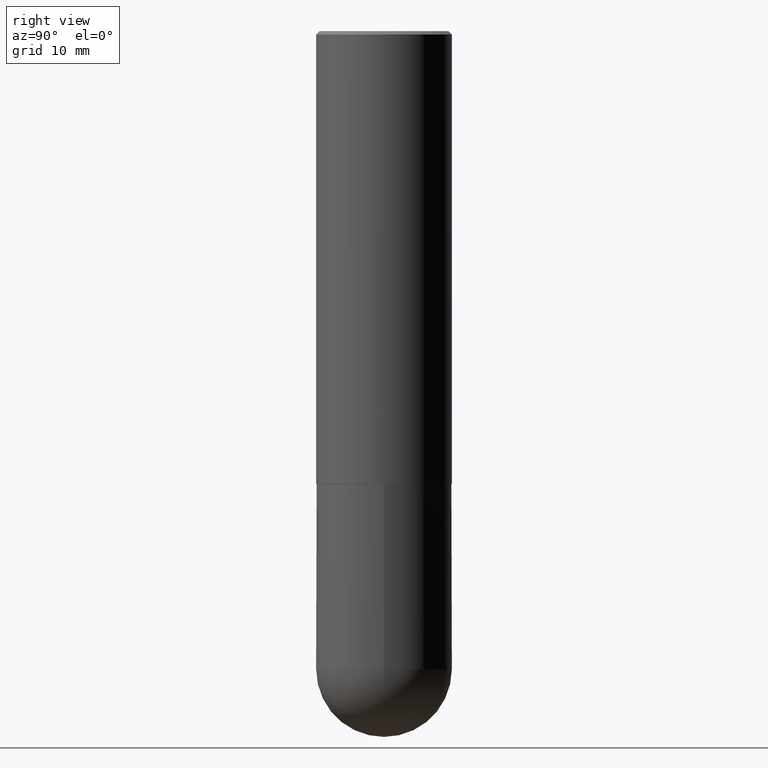
[diagram: clean part render]
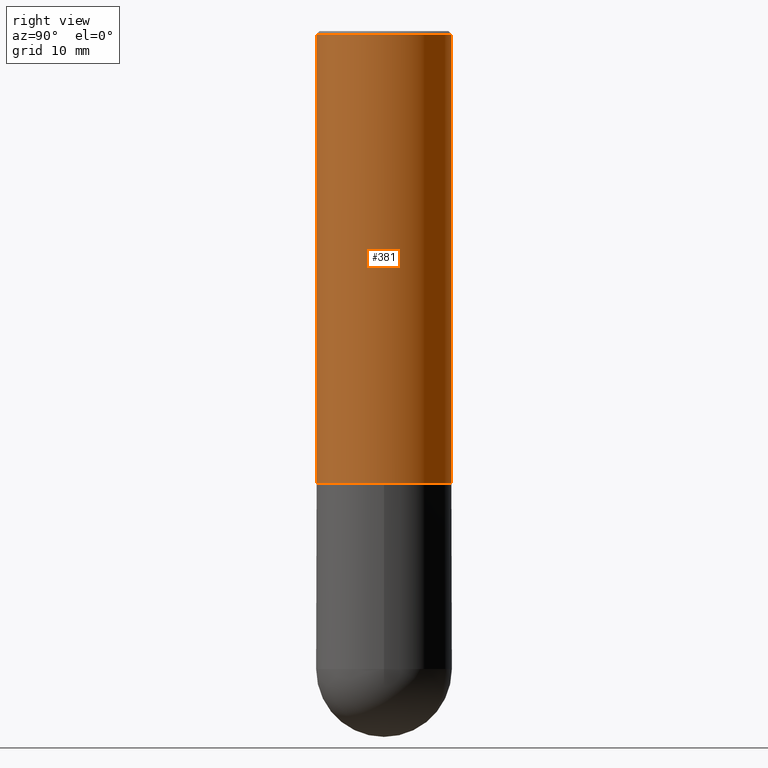
[diagram: same view with one face highlighted and labeled with its STEP entity id]
A machine part, right view. The second image highlights one B-rep face of the part: STEP entity #381.
In plain terms, the highlighted cylindrical surface (partial cylindrical patch) has radius 10 mm, axis along (-0, 0, 1).
Its self-contained STEP definition (entity closure, byte-faithful):
#10 = CARTESIAN_POINT ( 'NONE',  ( 6.420003766167635957E-29, -9.164210326870732173E-15, -2.625000000000000444 ) ) ;
#16 = VERTEX_POINT ( 'NONE', #211 ) ;
#23 = CARTESIAN_POINT ( 'NONE',  ( 2.749192406205083217E-15, 0.3936999999999999389, -0.02000000000000146105 ) ) ;
#50 = ORIENTED_EDGE ( 'NONE', *, *, #168, .F. ) ;
#53 = AXIS2_PLACEMENT_3D ( 'NONE', #193, #73, #164 ) ;
#71 = CYLINDRICAL_SURFACE ( 'NONE', #53, 0.3937000000000001609 ) ;
#73 = DIRECTION ( 'NONE',  ( -2.445715720444812897E-29, 3.491127743569801887E-15, 1.000000000000000000 ) ) ;
#83 = EDGE_CURVE ( 'NONE', #118, #236, #404, .T. ) ;
#85 = AXIS2_PLACEMENT_3D ( 'NONE', #10, #235, #321 ) ;
#97 = AXIS2_PLACEMENT_3D ( 'NONE', #406, #382, #178 ) ;
#103 = ORIENTED_EDGE ( 'NONE', *, *, #249, .T. ) ;
#118 = VERTEX_POINT ( 'NONE', #313 ) ;
#123 = CIRCLE ( 'NONE', #97, 0.3937000000000000499 ) ;
#137 = DIRECTION ( 'NONE',  ( -2.445715720444812897E-29, 3.491127743569801887E-15, 1.000000000000000000 ) ) ;
#150 = EDGE_LOOP ( 'NONE', ( #103, #242, #50, #189 ) ) ;
#164 = DIRECTION ( 'NONE',  ( -6.982962677686265922E-15, -1.000000000000000000, 3.491127743569801493E-15 ) ) ;
#168 = EDGE_CURVE ( 'NONE', #236, #405, #123, .T. ) ;
#178 = DIRECTION ( 'NONE',  ( -6.982962677686265133E-15, -1.000000000000000000, 3.491137977679279424E-15 ) ) ;
#189 = ORIENTED_EDGE ( 'NONE', *, *, #83, .F. ) ;
#193 = CARTESIAN_POINT ( 'NONE',  ( 0.000000000000000000, 0.000000000000000000, 0.000000000000000000 ) ) ;
#197 = CARTESIAN_POINT ( 'NONE',  ( -2.700978061722651252E-15, -0.3937000000000001054, -0.01999999999999870978 ) ) ;
#211 = CARTESIAN_POINT ( 'NONE',  ( 2.797406750687547524E-15, 0.3936999999999911681, -2.625000000000002220 ) ) ;
#222 = EDGE_CURVE ( 'NONE', #16, #405, #347, .T. ) ;
#235 = DIRECTION ( 'NONE',  ( -2.445715720444812897E-29, 3.491127743569801887E-15, 1.000000000000000000 ) ) ;
#236 = VERTEX_POINT ( 'NONE', #197 ) ;
#242 = ORIENTED_EDGE ( 'NONE', *, *, #222, .T. ) ;
#249 = EDGE_CURVE ( 'NONE', #118, #16, #259, .T. ) ;
#259 = CIRCLE ( 'NONE', #85, 0.3937000000000002720 ) ;
#301 = VECTOR ( 'NONE', #371, 39.37007874015748143 ) ;
#310 = CARTESIAN_POINT ( 'NONE',  ( -2.749192406205084005E-15, -0.3937000000000001609, 1.374456992643431481E-15 ) ) ;
#313 = CARTESIAN_POINT ( 'NONE',  ( -2.749192406205020897E-15, -0.3937000000000094313, -2.624999999999999112 ) ) ;
#319 = CARTESIAN_POINT ( 'NONE',  ( 2.797406750687515181E-15, 0.3937000000000001609, -1.374456992643431481E-15 ) ) ;
#321 = DIRECTION ( 'NONE',  ( -6.982962677686265922E-15, -1.000000000000000000, 4.163344669033672479E-15 ) ) ;
#329 = VECTOR ( 'NONE', #137, 39.37007874015748143 ) ;
#347 = LINE ( 'NONE', #319, #329 ) ;
#371 = DIRECTION ( 'NONE',  ( -2.445715720444812897E-29, 3.491127743569801887E-15, 1.000000000000000000 ) ) ;
#381 = ADVANCED_FACE ( 'NONE', ( #393 ), #71, .T. ) ;
#382 = DIRECTION ( 'NONE',  ( -2.445715720444812897E-29, 3.491127743569801887E-15, 1.000000000000000000 ) ) ;
#393 = FACE_OUTER_BOUND ( 'NONE', #150, .T. ) ;
#404 = LINE ( 'NONE', #310, #301 ) ;
#405 = VERTEX_POINT ( 'NONE', #23 ) ;
#406 = CARTESIAN_POINT ( 'NONE',  ( 4.891431440889647024E-31, -6.982255487139634738E-17, -0.02000000000000008715 ) ) ;